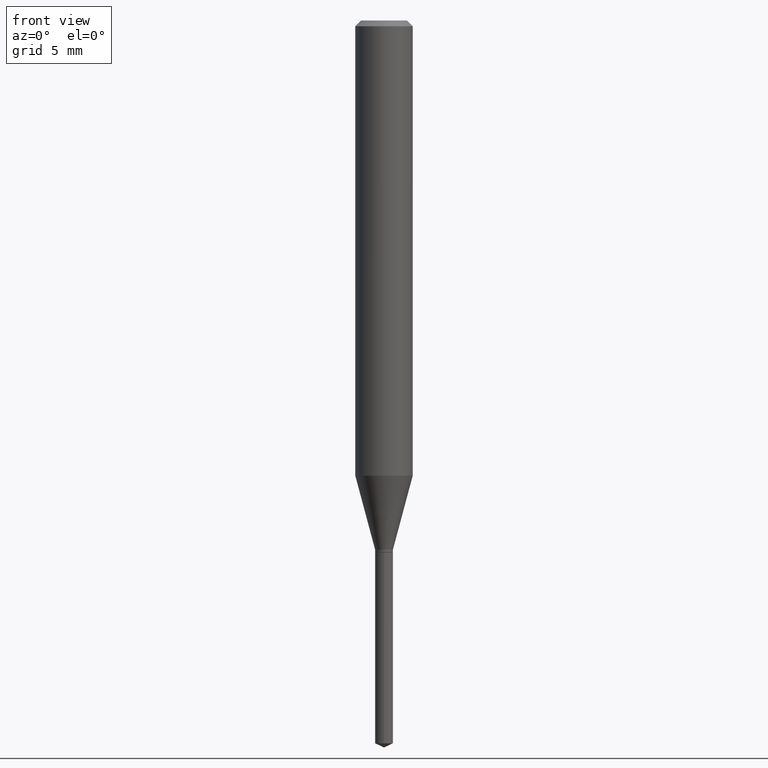
[diagram: clean part render]
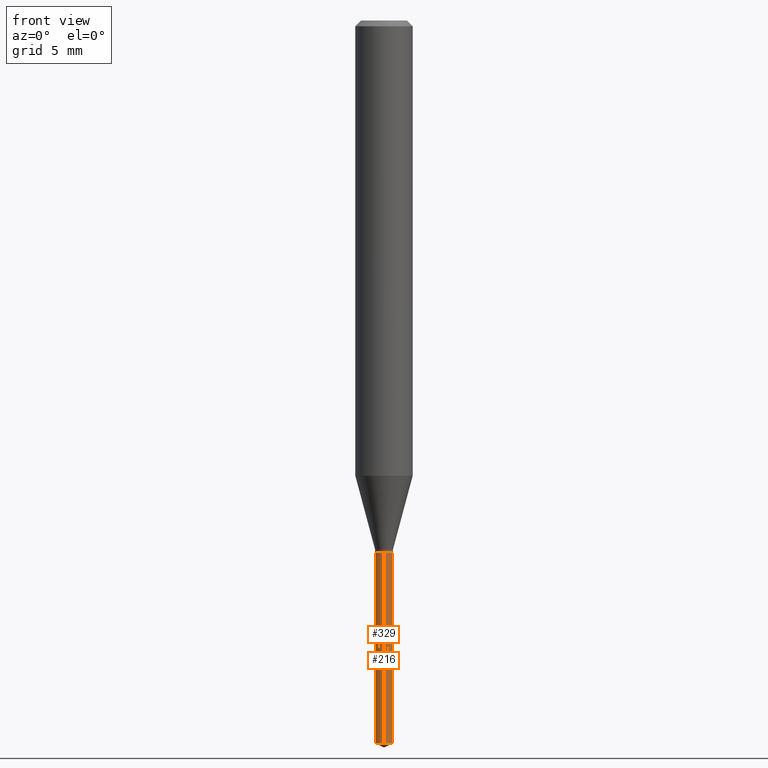
[diagram: same view with one multi-face feature highlighted, each face labeled with its STEP entity id]
A machine part, front view. The highlighted faces form ONE feature: a constant-radius fillet chain: 2 tangent blend faces with common blend radius 0.4648 mm. The faces share edges in the B-rep.
Their STEP definitions:
[1] entity #329 (Cylinder):
#14 = AXIS2_PLACEMENT_3D ( 'NONE', #398, #242, #239 ) ;
#67 = CARTESIAN_POINT ( 'NONE',  ( -1.277882170016318992E-16, -0.01830000000000382362, -1.094499999999999806 ) ) ;
#81 = CARTESIAN_POINT ( 'NONE',  ( 1.300293206441250834E-16, 0.01829999999999617696, -1.094499999999999806 ) ) ;
#98 = VERTEX_POINT ( 'NONE', #165 ) ;
#100 = EDGE_CURVE ( 'NONE', #182, #138, #302, .T. ) ;
#103 = LINE ( 'NONE', #67, #445 ) ;
#105 = CIRCLE ( 'NONE', #367, 0.01830000000000000029 ) ;
#127 = CYLINDRICAL_SURFACE ( 'NONE', #14, 0.01830000000000000029 ) ;
#128 = DIRECTION ( 'NONE',  ( -6.982962677686265922E-15, -1.000000000000000000, 0.000000000000000000 ) ) ;
#133 = DIRECTION ( 'NONE',  ( -6.982962677686265922E-15, -1.000000000000000000, 0.000000000000000000 ) ) ;
#138 = VERTEX_POINT ( 'NONE', #428 ) ;
#161 = AXIS2_PLACEMENT_3D ( 'NONE', #437, #384, #133 ) ;
#163 = EDGE_CURVE ( 'NONE', #387, #138, #103, .T. ) ;
#165 = CARTESIAN_POINT ( 'NONE',  ( 1.300293206441347223E-16, 0.01829999999999480653, -1.487566569855763410 ) ) ;
#175 = CARTESIAN_POINT ( 'NONE',  ( 3.637794463447608962E-29, -5.193815473249464484E-15, -1.487566569855763410 ) ) ;
#182 = VERTEX_POINT ( 'NONE', #374 ) ;
#239 = DIRECTION ( 'NONE',  ( -6.982962677686265922E-15, -1.000000000000000000, 0.000000000000000000 ) ) ;
#242 = DIRECTION ( 'NONE',  ( -2.445460715294871217E-29, 3.491492925458510144E-15, 1.000000000000000000 ) ) ;
#302 = CIRCLE ( 'NONE', #161, 0.01830000000000000029 ) ;
#321 = DIRECTION ( 'NONE',  ( -2.445460715294871217E-29, 3.491492925458510144E-15, 1.000000000000000000 ) ) ;
#323 = EDGE_CURVE ( 'NONE', #98, #182, #400, .T. ) ;
#326 = VECTOR ( 'NONE', #321, 39.37007874015748143 ) ;
#328 = ORIENTED_EDGE ( 'NONE', *, *, #449, .T. ) ;
#329 = ADVANCED_FACE ( 'NONE', ( #361 ), #127, .T. ) ;
#337 = ORIENTED_EDGE ( 'NONE', *, *, #323, .F. ) ;
#339 = DIRECTION ( 'NONE',  ( -2.445460715294871217E-29, 3.491492925458510144E-15, 1.000000000000000000 ) ) ;
#361 = FACE_OUTER_BOUND ( 'NONE', #415, .T. ) ;
#367 = AXIS2_PLACEMENT_3D ( 'NONE', #175, #377, #128 ) ;
#374 = CARTESIAN_POINT ( 'NONE',  ( 1.300293206441347716E-16, 0.01829999999999618043, -1.094499999999999806 ) ) ;
#377 = DIRECTION ( 'NONE',  ( -2.445460715294871217E-29, 3.491492925458510144E-15, 1.000000000000000000 ) ) ;
#384 = DIRECTION ( 'NONE',  ( -2.445460715294871217E-29, 3.491492925458510144E-15, 1.000000000000000000 ) ) ;
#387 = VERTEX_POINT ( 'NONE', #475 ) ;
#398 = CARTESIAN_POINT ( 'NONE',  ( 2.676565608369631794E-29, -3.821426325363822773E-15, -1.094499999999999806 ) ) ;
#400 = LINE ( 'NONE', #81, #326 ) ;
#415 = EDGE_LOOP ( 'NONE', ( #337, #328, #463, #453 ) ) ;
#428 = CARTESIAN_POINT ( 'NONE',  ( -1.277882170016318992E-16, -0.01830000000000382362, -1.094499999999999806 ) ) ;
#437 = CARTESIAN_POINT ( 'NONE',  ( 2.676565608369631794E-29, -3.821426325363822773E-15, -1.094499999999999806 ) ) ;
#445 = VECTOR ( 'NONE', #339, 39.37007874015748143 ) ;
#449 = EDGE_CURVE ( 'NONE', #98, #387, #105, .T. ) ;
#453 = ORIENTED_EDGE ( 'NONE', *, *, #100, .F. ) ;
#463 = ORIENTED_EDGE ( 'NONE', *, *, #163, .T. ) ;
#475 = CARTESIAN_POINT ( 'NONE',  ( -1.277882170016222849E-16, -0.01830000000000519753, -1.487566569855763410 ) ) ;
[2] entity #216 (Cylinder):
#7 = AXIS2_PLACEMENT_3D ( 'NONE', #17, #51, #24 ) ;
#17 = CARTESIAN_POINT ( 'NONE',  ( 3.637794463447608962E-29, -5.193815473249464484E-15, -1.487566569855763410 ) ) ;
#24 = DIRECTION ( 'NONE',  ( -6.982962677686265922E-15, -1.000000000000000000, 0.000000000000000000 ) ) ;
#51 = DIRECTION ( 'NONE',  ( -2.445460715294871217E-29, 3.491492925458510144E-15, 1.000000000000000000 ) ) ;
#67 = CARTESIAN_POINT ( 'NONE',  ( -1.277882170016318992E-16, -0.01830000000000382362, -1.094499999999999806 ) ) ;
#69 = CYLINDRICAL_SURFACE ( 'NONE', #118, 0.01830000000000000029 ) ;
#81 = CARTESIAN_POINT ( 'NONE',  ( 1.300293206441250834E-16, 0.01829999999999617696, -1.094499999999999806 ) ) ;
#91 = CIRCLE ( 'NONE', #7, 0.01830000000000000029 ) ;
#98 = VERTEX_POINT ( 'NONE', #165 ) ;
#103 = LINE ( 'NONE', #67, #445 ) ;
#114 = DIRECTION ( 'NONE',  ( -2.445460715294871217E-29, 3.491492925458510144E-15, 1.000000000000000000 ) ) ;
#118 = AXIS2_PLACEMENT_3D ( 'NONE', #267, #465, #186 ) ;
#130 = EDGE_CURVE ( 'NONE', #138, #182, #311, .T. ) ;
#138 = VERTEX_POINT ( 'NONE', #428 ) ;
#163 = EDGE_CURVE ( 'NONE', #387, #138, #103, .T. ) ;
#165 = CARTESIAN_POINT ( 'NONE',  ( 1.300293206441347223E-16, 0.01829999999999480653, -1.487566569855763410 ) ) ;
#177 = AXIS2_PLACEMENT_3D ( 'NONE', #419, #114, #347 ) ;
#182 = VERTEX_POINT ( 'NONE', #374 ) ;
#186 = DIRECTION ( 'NONE',  ( -6.982962677686265922E-15, -1.000000000000000000, 0.000000000000000000 ) ) ;
#191 = EDGE_LOOP ( 'NONE', ( #452, #295, #260, #382 ) ) ;
#216 = ADVANCED_FACE ( 'NONE', ( #341 ), #69, .T. ) ;
#260 = ORIENTED_EDGE ( 'NONE', *, *, #130, .F. ) ;
#267 = CARTESIAN_POINT ( 'NONE',  ( 2.676565608369631794E-29, -3.821426325363822773E-15, -1.094499999999999806 ) ) ;
#295 = ORIENTED_EDGE ( 'NONE', *, *, #323, .T. ) ;
#311 = CIRCLE ( 'NONE', #177, 0.01830000000000000029 ) ;
#321 = DIRECTION ( 'NONE',  ( -2.445460715294871217E-29, 3.491492925458510144E-15, 1.000000000000000000 ) ) ;
#323 = EDGE_CURVE ( 'NONE', #98, #182, #400, .T. ) ;
#326 = VECTOR ( 'NONE', #321, 39.37007874015748143 ) ;
#339 = DIRECTION ( 'NONE',  ( -2.445460715294871217E-29, 3.491492925458510144E-15, 1.000000000000000000 ) ) ;
#341 = FACE_OUTER_BOUND ( 'NONE', #191, .T. ) ;
#347 = DIRECTION ( 'NONE',  ( -6.982962677686265922E-15, -1.000000000000000000, 0.000000000000000000 ) ) ;
#349 = EDGE_CURVE ( 'NONE', #387, #98, #91, .T. ) ;
#374 = CARTESIAN_POINT ( 'NONE',  ( 1.300293206441347716E-16, 0.01829999999999618043, -1.094499999999999806 ) ) ;
#382 = ORIENTED_EDGE ( 'NONE', *, *, #163, .F. ) ;
#387 = VERTEX_POINT ( 'NONE', #475 ) ;
#400 = LINE ( 'NONE', #81, #326 ) ;
#419 = CARTESIAN_POINT ( 'NONE',  ( 2.676565608369631794E-29, -3.821426325363822773E-15, -1.094499999999999806 ) ) ;
#428 = CARTESIAN_POINT ( 'NONE',  ( -1.277882170016318992E-16, -0.01830000000000382362, -1.094499999999999806 ) ) ;
#445 = VECTOR ( 'NONE', #339, 39.37007874015748143 ) ;
#452 = ORIENTED_EDGE ( 'NONE', *, *, #349, .T. ) ;
#465 = DIRECTION ( 'NONE',  ( -2.445460715294871217E-29, 3.491492925458510144E-15, 1.000000000000000000 ) ) ;
#475 = CARTESIAN_POINT ( 'NONE',  ( -1.277882170016222849E-16, -0.01830000000000519753, -1.487566569855763410 ) ) ;